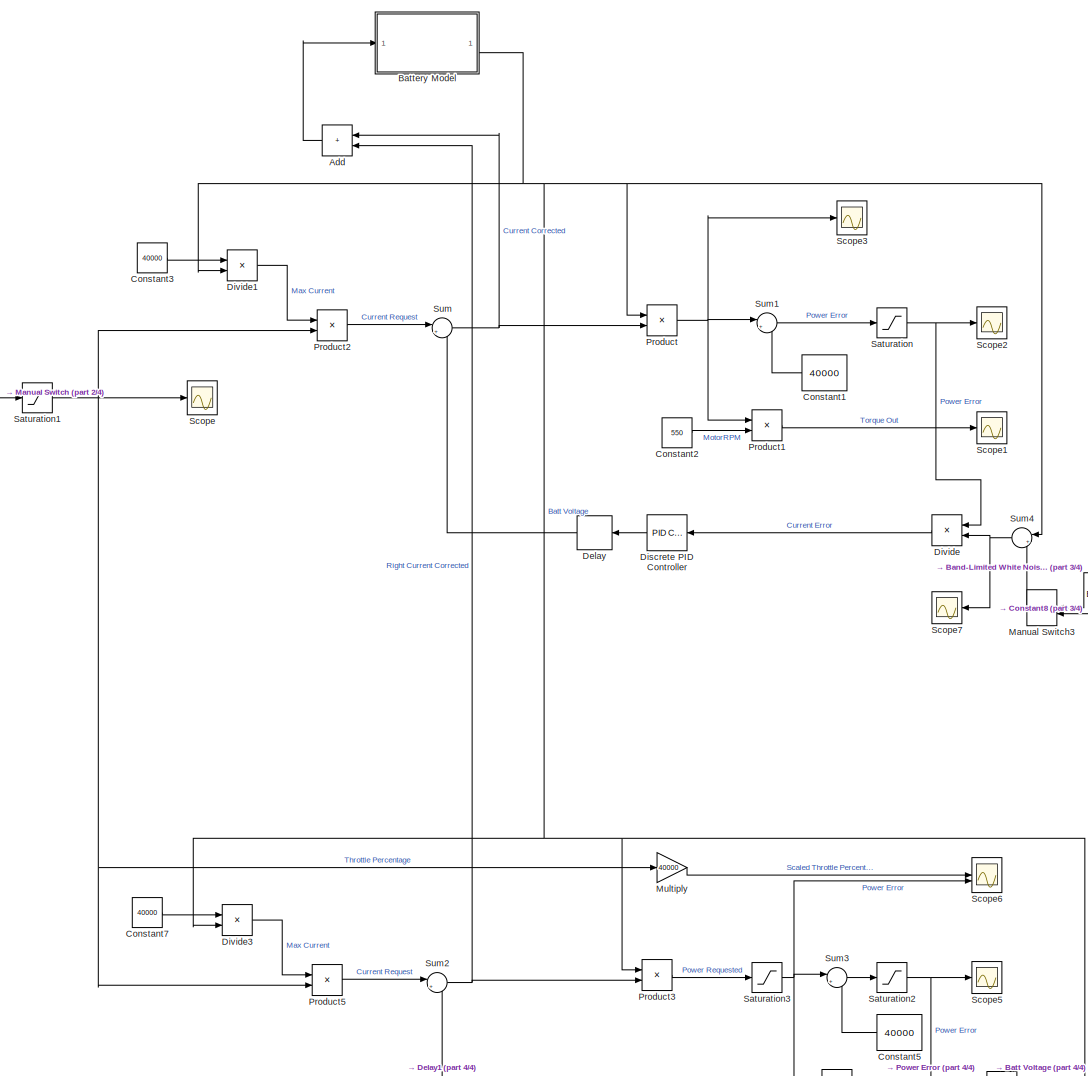
[diagram: root canvas - part 1/4, most of the canvas]
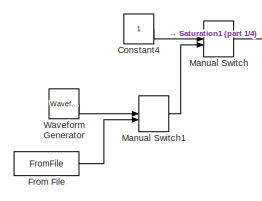
[diagram: root canvas - part 2/4, middle left region]
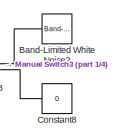
[diagram: root canvas - part 3/4, middle right region]
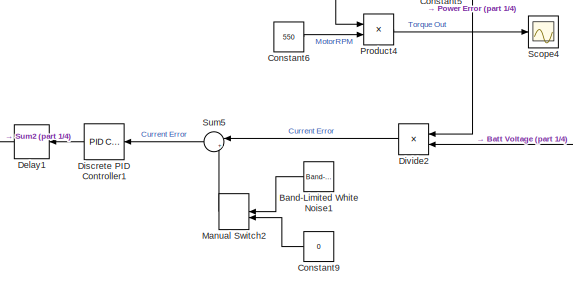
[diagram: root canvas - part 4/4, bottom right region]
MODEL slx_eab3477a3c40
KIND model
CONFIG AbsTol = auto
CONFIG EnableMultiTasking = off
CONFIG FixedStep = auto
CONFIG MaxStep = auto
CONFIG MinStep = auto
CONFIG RelTol = 1e-3
CONFIG SampleTimeConstraint = Unconstrained
CONFIG SolverName = VariableStepAuto
CONFIG StartTime = 0.0
CONFIG StopTime = 97.91
BLOCK [Sum] Add
  IconShape = rectangular
BLOCK [Reference] Band-Limited White Noise1  REF=simulink/Sources/Band-Limited
White Noise
  SourceBlock = simulink/Sources/Band-Limited\nWhite Noise
  SourceType = Band-Limited White Noise.
BLOCK [Reference] Band-Limited White Noise2  REF=simulink/Sources/Band-Limited
White Noise
  SourceBlock = simulink/Sources/Band-Limited\nWhite Noise
  SourceType = Band-Limited White Noise.
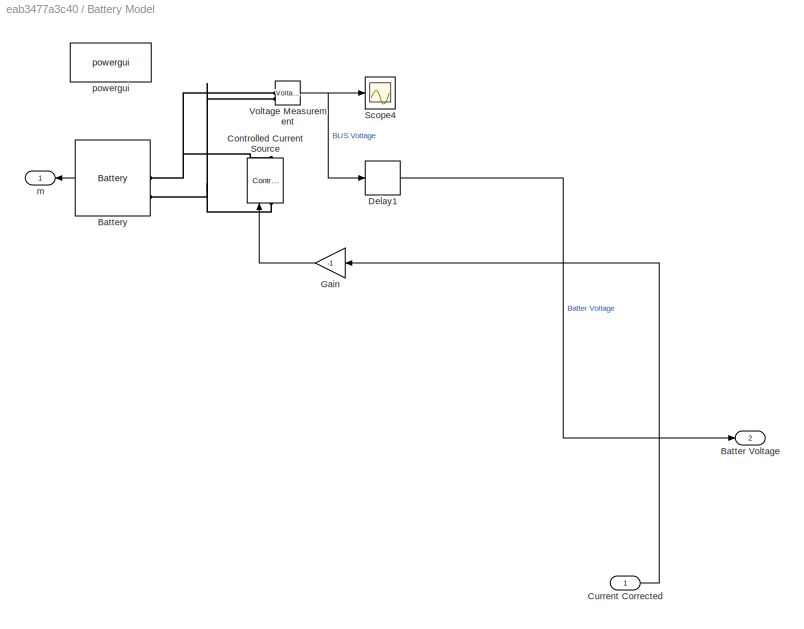
BLOCK [SubSystem] Battery Model
BLOCK [Outport] Battery Model/Batter Voltage
  Port = 2
BLOCK [Reference] Battery Model/Battery  REF=spsBatteryLib/Battery
  LibrarySourceBlock = sps_lib/Sources/Battery
  SourceBlock = spsBatteryLib/Battery
  SourceType = Battery
BLOCK [Reference] Battery Model/Controlled Current Source  REF=spsControlledCurrentSourceLib/Controlled Current Source
  LibrarySourceBlock = sps_lib/Sources/Controlled Current Source
  SourceBlock = spsControlledCurrentSourceLib/Controlled Current Source
  SourceType = Controlled Current Source
BLOCK [Inport] Battery Model/Current Corrected
BLOCK [Delay] Battery Model/Delay1
  DelayLength = 1
  InitialCondition = 600
  InputPortMap = u0
BLOCK [Gain] Battery Model/Gain
  Gain = -1
BLOCK [Scope] Battery Model/Scope4
  Floating = off
  NumInputPorts = 1
  ScopeSpecificationString = Simulink.scopes.TimeScopeBlockCfg('CurrentConfiguration', extmgr.ConfigurationSet(extmgr.Configuration('Core','General UI',true),extmgr.Configuration('Core','Source UI',true),extmgr.Configuration('Sources','WiredSimulink',true,'DataLoggingVariableName','ScopeData1'),extmgr.Configuration('Visuals','Time Domain',true,'SerializedDisplays',{struct('MinYLimReal','594.81411','MaxYLimReal','595.3453','YL...<+1469ch>
BLOCK [Reference] Battery Model/Voltage Measurement  REF=spsVoltageMeasurementLib/Voltage Measurement
  LibrarySourceBlock = sps_lib/Sensors and Measurements/Voltage Measurement
  SourceBlock = spsVoltageMeasurementLib/Voltage Measurement
  SourceType = Voltage Measurement
  UserDataPersistent = on
BLOCK [Outport] Battery Model/m
BLOCK [Reference] Battery Model/powergui  REF=sps_lib/powergui
  LibrarySourceBlock = sps_lib/powergui
  Priority = 1
  SourceBlock = sps_lib/powergui
  SourceType = PSB option menu block
BLOCK [Constant] Constant1
  Value = 40000
BLOCK [Constant] Constant2
  Value = 550
BLOCK [Constant] Constant3
  Value = 40000
BLOCK [Constant] Constant4
BLOCK [Constant] Constant5
  Value = 40000
BLOCK [Constant] Constant6
  Value = 550
BLOCK [Constant] Constant7
  Value = 40000
BLOCK [Constant] Constant8
  Value = 0
BLOCK [Constant] Constant9
  Value = 0
BLOCK [Delay] Delay
  DelayLength = 1
  InputPortMap = u0
BLOCK [Delay] Delay1
  DelayLength = 1
  InputPortMap = u0
BLOCK [Reference] Discrete PID Controller  REF=slpidlib/PID Controller
  LibrarySourceBlock = simulink/Discrete/Discrete PID Controller
  SourceBlock = slpidlib/PID Controller
  SourceType = PID 1dof
BLOCK [Reference] Discrete PID Controller1  REF=slpidlib/PID Controller
  LibrarySourceBlock = simulink/Discrete/Discrete PID Controller
  SourceBlock = slpidlib/PID Controller
  SourceType = PID 1dof
BLOCK [Product] Divide
  Inputs = */
BLOCK [Product] Divide1
  Inputs = */
BLOCK [Product] Divide2
  Inputs = */
BLOCK [Product] Divide3
  Inputs = */
BLOCK [FromFile] From File
  FileName = data.mat
  SampleTime = 0
BLOCK [ManualSwitch] Manual Switch
  CurrentSetting = 0
BLOCK [ManualSwitch] Manual Switch1
  CurrentSetting = 0
BLOCK [ManualSwitch] Manual Switch2
BLOCK [ManualSwitch] Manual Switch3
BLOCK [Gain] Multiply
  Gain = 40000
BLOCK [Product] Product
BLOCK [Product] Product1
BLOCK [Product] Product2
BLOCK [Product] Product3
BLOCK [Product] Product4
BLOCK [Product] Product5
BLOCK [Saturate] Saturation
  LowerLimit = 0
  UpperLimit = inf
BLOCK [Saturate] Saturation1
  LowerLimit = 0
  UpperLimit = inf
BLOCK [Saturate] Saturation2
  LowerLimit = 0
  UpperLimit = inf
BLOCK [Saturate] Saturation3
  LowerLimit = 0
  UpperLimit = inf
BLOCK [Scope] Scope
  Floating = off
  NumInputPorts = 1
  ScopeSpecificationString = Simulink.scopes.TimeScopeBlockCfg('CurrentConfiguration', extmgr.ConfigurationSet(extmgr.Configuration('Core','General UI',true),extmgr.Configuration('Core','Source UI',true),extmgr.Configuration('Sources','WiredSimulink',true),extmgr.Configuration('Visuals','Time Domain',true,'SerializedDisplays',{struct('MinYLimReal','-0.14962','MaxYLimReal','1.34658','YLabelReal','','MinYLimMag','0.00000','MaxY...<+1496ch>
BLOCK [Scope] Scope1
  Floating = off
  NumInputPorts = 1
  ScopeSpecificationString = Simulink.scopes.TimeScopeBlockCfg('CurrentConfiguration', extmgr.ConfigurationSet(extmgr.Configuration('Core','General UI',true),extmgr.Configuration('Core','Source UI',true),extmgr.Configuration('Sources','WiredSimulink',true,'DataLoggingVariableName','ScopeData1'),extmgr.Configuration('Visuals','Time Domain',true,'SerializedDisplays',{struct('MinYLimReal','-7572975.16471','MaxYLimReal','26280745...<+1541ch>
BLOCK [Scope] Scope2
  Floating = off
  NumInputPorts = 1
  ScopeSpecificationString = Simulink.scopes.TimeScopeBlockCfg('CurrentConfiguration', extmgr.ConfigurationSet(extmgr.Configuration('Core','General UI',true),extmgr.Configuration('Core','Source UI',true),extmgr.Configuration('Sources','WiredSimulink',true,'DataLoggingVariableName','ScopeData2'),extmgr.Configuration('Visuals','Time Domain',true,'SerializedDisplays',{struct('MinYLimReal','-0.0000000000009','MaxYLimReal','0.0000...<+1523ch>
BLOCK [Scope] Scope3
  Floating = off
  NumInputPorts = 1
  ScopeSpecificationString = Simulink.scopes.TimeScopeBlockCfg('CurrentConfiguration', extmgr.ConfigurationSet(extmgr.Configuration('Core','General UI',true),extmgr.Configuration('Core','Source UI',true),extmgr.Configuration('Sources','WiredSimulink',true,'DataLoggingVariableName','ScopeData3'),extmgr.Configuration('Visuals','Time Domain',true,'SerializedDisplays',{struct('MinYLimReal','-5000.00000','MaxYLimReal','45000.00000...<+1481ch>
BLOCK [Scope] Scope4
  Floating = off
  NumInputPorts = 1
  ScopeSpecificationString = Simulink.scopes.TimeScopeBlockCfg('CurrentConfiguration', extmgr.ConfigurationSet(extmgr.Configuration('Core','General UI',true),extmgr.Configuration('Core','Source UI',true),extmgr.Configuration('Sources','WiredSimulink',true,'DataLoggingVariableName','ScopeData1'),extmgr.Configuration('Visuals','Time Domain',true,'SerializedDisplays',{struct('MinYLimReal','21862500.00000','MaxYLimReal','23237500...<+1545ch>
BLOCK [Scope] Scope5
  Floating = off
  NumInputPorts = 1
  ScopeSpecificationString = Simulink.scopes.TimeScopeBlockCfg('CurrentConfiguration', extmgr.ConfigurationSet(extmgr.Configuration('Core','General UI',true),extmgr.Configuration('Core','Source UI',true),extmgr.Configuration('Sources','WiredSimulink',true,'DataLoggingVariableName','ScopeData2'),extmgr.Configuration('Visuals','Time Domain',true,'SerializedDisplays',{struct('MinYLimReal','-311.73532','MaxYLimReal','2805.61791',...<+1477ch>
BLOCK [Scope] Scope6
  Floating = off
  NumInputPorts = 2
  ScopeSpecificationString = Simulink.scopes.TimeScopeBlockCfg('CurrentConfiguration', extmgr.ConfigurationSet(extmgr.Configuration('Core','General UI',true,'FigureColor',[1 1 1]),extmgr.Configuration('Core','Source UI',true),extmgr.Configuration('Sources','WiredSimulink',true,'DataLoggingVariableName','ScopeData3'),extmgr.Configuration('Visuals','Time Domain',true,'SerializedDisplays',{struct('MinYLimReal','-5000.00000','Max...<+1881ch>
BLOCK [Scope] Scope7
  Floating = off
  NumInputPorts = 1
  ScopeSpecificationString = Simulink.scopes.TimeScopeBlockCfg('CurrentConfiguration', extmgr.ConfigurationSet(extmgr.Configuration('Core','General UI',true),extmgr.Configuration('Core','Source UI',true),extmgr.Configuration('Sources','WiredSimulink',true,'DataLoggingVariableName','ScopeData1'),extmgr.Configuration('Visuals','Time Domain',true,'SerializedDisplays',{struct('MinYLimReal','588.8924','MaxYLimReal','601.63031','YL...<+1462ch>
BLOCK [Sum] Sum
  Inputs = |+-
BLOCK [Sum] Sum1
  Inputs = |+-
BLOCK [Sum] Sum2
  Inputs = |+-
BLOCK [Sum] Sum3
  Inputs = |+-
BLOCK [Sum] Sum4
  Inputs = |++
BLOCK [Sum] Sum5
  Inputs = |++
BLOCK [Reference] Waveform Generator  REF=simulink/Sources/Waveform
Generator
  SourceBlock = simulink/Sources/Waveform\nGenerator
  SourceType = WaveformGenerator
LINE Add:1 -> Battery Model:1
LINE Band-Limited White Noise1:1 -> Manual Switch2:1
LINE Band-Limited White Noise2:1 -> Manual Switch3:1
LINE Battery Model/Battery:1 -> Battery Model/m:1
LINE Battery Model/Current Corrected:1 -> Battery Model/Gain:1
LINE Battery Model/Delay1:1 -> Battery Model/Batter Voltage:1
LINE Battery Model/Gain:1 -> Battery Model/Controlled Current Source:1
NET Battery Model/Voltage Measurement:1 -> Battery Model/Delay1:1, Battery Model/Scope4:1
NET Battery Model:2 -> Divide1:2, Divide2:2, Divide3:2, Product3:1, Product:1, Sum4:1
LINE Constant1:1 -> Sum1:2
LINE Constant2:1 -> Product1:2
LINE Constant3:1 -> Divide1:1
LINE Constant4:1 -> Manual Switch:1
LINE Constant5:1 -> Sum3:2
LINE Constant6:1 -> Product4:2
LINE Constant7:1 -> Divide3:1
LINE Constant8:1 -> Manual Switch3:2
LINE Constant9:1 -> Manual Switch2:2
LINE Delay1:1 -> Sum2:2
LINE Delay:1 -> Sum:2
LINE Discrete PID Controller1:1 -> Delay1:1
LINE Discrete PID Controller:1 -> Delay:1
LINE Divide1:1 -> Product2:1
LINE Divide2:1 -> Sum5:1
LINE Divide3:1 -> Product5:1
LINE Divide:1 -> Discrete PID Controller:1
LINE From File:1 -> Manual Switch1:2
LINE Manual Switch1:1 -> Manual Switch:2
LINE Manual Switch2:1 -> Sum5:2
LINE Manual Switch3:1 -> Sum4:2
LINE Manual Switch:1 -> Saturation1:1
LINE Multiply:1 -> Scope6:1
LINE Product1:1 -> Scope1:1
LINE Product2:1 -> Sum:1
LINE Product3:1 -> Saturation3:1
LINE Product4:1 -> Scope4:1
LINE Product5:1 -> Sum2:1
NET Product:1 -> Product1:1, Scope3:1, Sum1:1
NET Saturation1:1 -> Multiply:1, Product2:2, Product5:2, Scope:1
NET Saturation2:1 -> Divide2:1, Scope5:1
NET Saturation3:1 -> Product4:1, Scope6:2, Sum3:1
NET Saturation:1 -> Divide:1, Scope2:1
LINE Sum1:1 -> Saturation:1
NET Sum2:1 -> Add:2, Product3:2
LINE Sum3:1 -> Saturation2:1
NET Sum4:1 -> Divide:2, Scope7:1
LINE Sum5:1 -> Discrete PID Controller1:1
NET Sum:1 -> Add:1, Product:2
LINE Waveform Generator:1 -> Manual Switch1:1
PNET net1: Battery Model/Battery:LConn1 -- Battery Model/Controlled Current Source:RConn1 -- Battery Model/Voltage Measurement:LConn1
PNET net2: Battery Model/Battery:LConn2 -- Battery Model/Controlled Current Source:LConn1 -- Battery Model/Voltage Measurement:LConn2
note: NET lines group one-source signal fan-out (src -> all destinations, sorted); 1:1 wires keep LINE; PNET lines group multi-terminal physical nets as a canonical sorted terminal list (undirected conserving connections); 2-terminal nets keep the pairwise PLINE form
